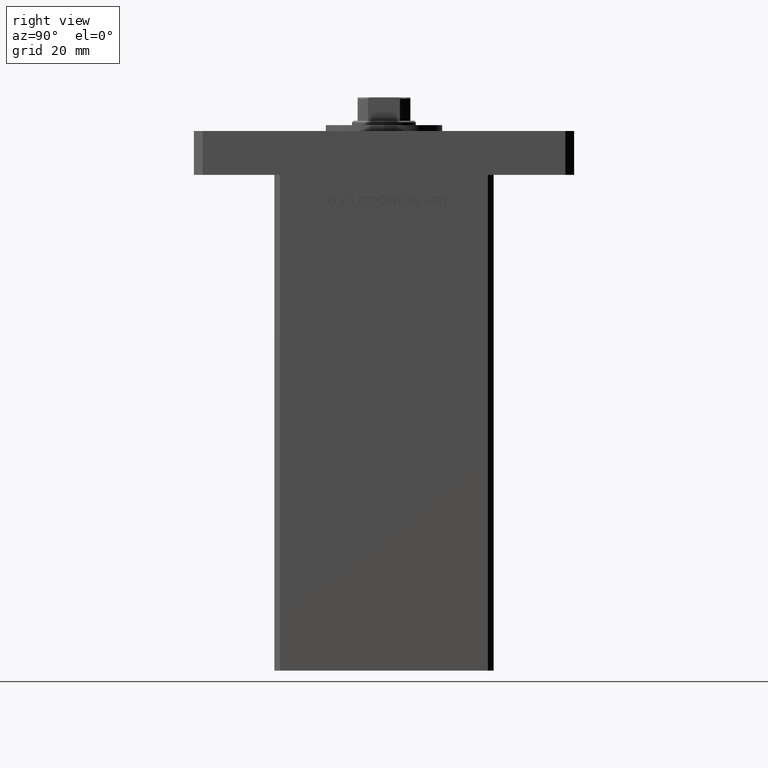
[diagram: clean part render]
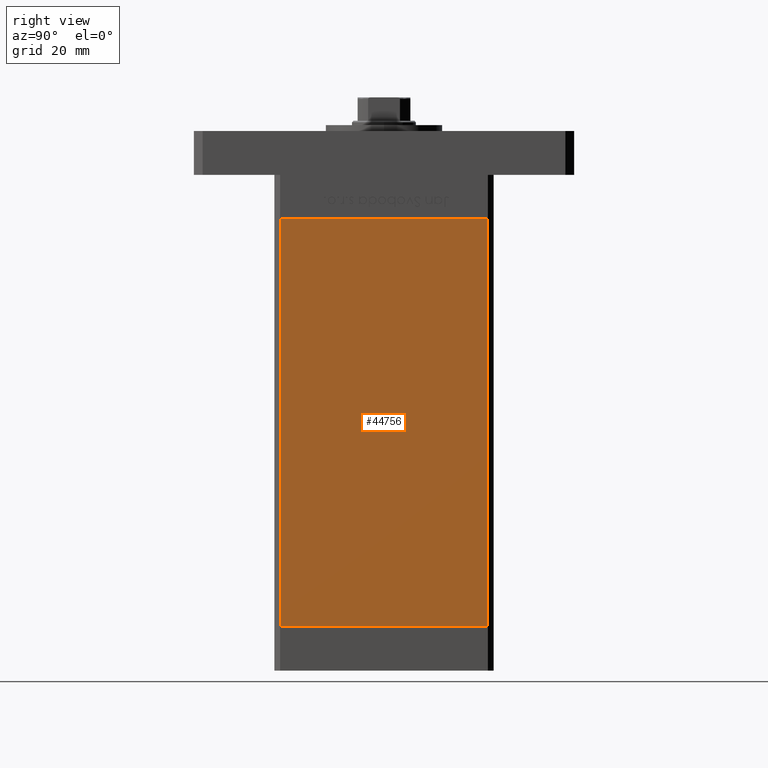
[diagram: same view with one face highlighted and labeled with its STEP entity id]
A machine part, right view. The second image highlights one B-rep face of the part: STEP entity #44756.
In plain terms, the highlighted planar face has unit normal (1, -0, 0).
Its self-contained STEP definition (entity closure, byte-faithful):
#1207 = ORIENTED_EDGE ( 'NONE', *, *, #15994, .F. ) ;
#1769 = CARTESIAN_POINT ( 'NONE',  ( 42.50000000000000711, 35.50000000000001421, 139.5000000000000000 ) ) ;
#2033 = DIRECTION ( 'NONE',  ( 2.931927001650941360E-16, 1.000000000000000000, 0.000000000000000000 ) ) ;
#2463 = LINE ( 'NONE', #18469, #50833 ) ;
#3328 = CARTESIAN_POINT ( 'NONE',  ( 42.49999999999998579, -35.50000000000000711, 139.5000000000000000 ) ) ;
#4455 = ORIENTED_EDGE ( 'NONE', *, *, #21414, .T. ) ;
#5096 = EDGE_LOOP ( 'NONE', ( #1207, #29513, #49903, #4455 ) ) ;
#5851 = EDGE_CURVE ( 'NONE', #8557, #35523, #8029, .T. ) ;
#5902 = CARTESIAN_POINT ( 'NONE',  ( 42.49999999999998579, -35.50000000000000711, 139.5000000000000000 ) ) ;
#7239 = CARTESIAN_POINT ( 'NONE',  ( 42.50000000000000711, 35.50000000000001421, 139.5000000000000000 ) ) ;
#8029 = LINE ( 'NONE', #7239, #43835 ) ;
#8557 = VERTEX_POINT ( 'NONE', #38315 ) ;
#10210 = CARTESIAN_POINT ( 'NONE',  ( 42.50000000000000711, 35.50000000000001421, 0.000000000000000000 ) ) ;
#10807 = EDGE_CURVE ( 'NONE', #8557, #46757, #2463, .T. ) ;
#12034 = VECTOR ( 'NONE', #35711, 1000.000000000000000 ) ;
#14674 = DIRECTION ( 'NONE',  ( -2.931927001650941360E-16, -1.000000000000000000, 0.000000000000000000 ) ) ;
#15994 = EDGE_CURVE ( 'NONE', #35523, #37140, #26230, .T. ) ;
#18469 = CARTESIAN_POINT ( 'NONE',  ( 42.50000000000000711, 35.50000000000001421, 139.5000000000000000 ) ) ;
#19490 = CARTESIAN_POINT ( 'NONE',  ( 42.50000000000000711, 35.50000000000001421, 0.000000000000000000 ) ) ;
#21414 = EDGE_CURVE ( 'NONE', #46757, #37140, #52279, .T. ) ;
#22912 = DIRECTION ( 'NONE',  ( 1.000000000000000000, -2.931927001650941360E-16, 0.000000000000000000 ) ) ;
#26050 = CARTESIAN_POINT ( 'NONE',  ( 42.49999999999998579, -35.50000000000000711, 0.000000000000000000 ) ) ;
#26230 = LINE ( 'NONE', #10210, #12034 ) ;
#28929 = DIRECTION ( 'NONE',  ( -0.000000000000000000, -0.000000000000000000, -1.000000000000000000 ) ) ;
#29513 = ORIENTED_EDGE ( 'NONE', *, *, #5851, .F. ) ;
#30029 = AXIS2_PLACEMENT_3D ( 'NONE', #1769, #22912, #2033 ) ;
#31223 = VECTOR ( 'NONE', #31676, 1000.000000000000000 ) ;
#31676 = DIRECTION ( 'NONE',  ( -0.000000000000000000, -0.000000000000000000, -1.000000000000000000 ) ) ;
#35523 = VERTEX_POINT ( 'NONE', #19490 ) ;
#35711 = DIRECTION ( 'NONE',  ( -2.931927001650941360E-16, -1.000000000000000000, 0.000000000000000000 ) ) ;
#37140 = VERTEX_POINT ( 'NONE', #26050 ) ;
#38315 = CARTESIAN_POINT ( 'NONE',  ( 42.50000000000000711, 35.50000000000001421, 139.5000000000000000 ) ) ;
#43835 = VECTOR ( 'NONE', #28929, 1000.000000000000000 ) ;
#44756 = ADVANCED_FACE ( 'NONE', ( #51668 ), #48137, .T. ) ;
#46757 = VERTEX_POINT ( 'NONE', #3328 ) ;
#48137 = PLANE ( 'NONE',  #30029 ) ;
#49903 = ORIENTED_EDGE ( 'NONE', *, *, #10807, .T. ) ;
#50833 = VECTOR ( 'NONE', #14674, 1000.000000000000000 ) ;
#51668 = FACE_OUTER_BOUND ( 'NONE', #5096, .T. ) ;
#52279 = LINE ( 'NONE', #5902, #31223 ) ;